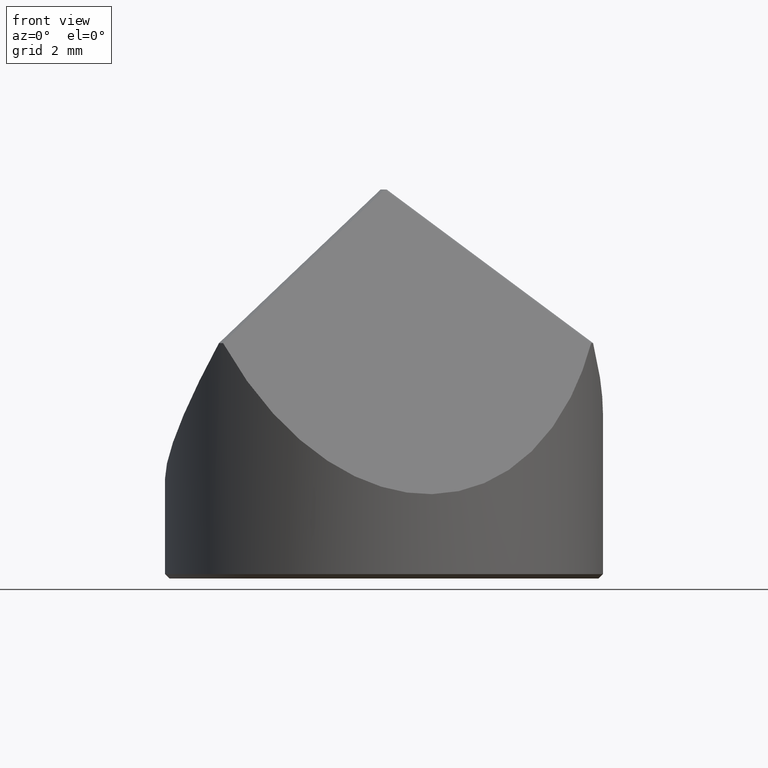
[diagram: clean part render]
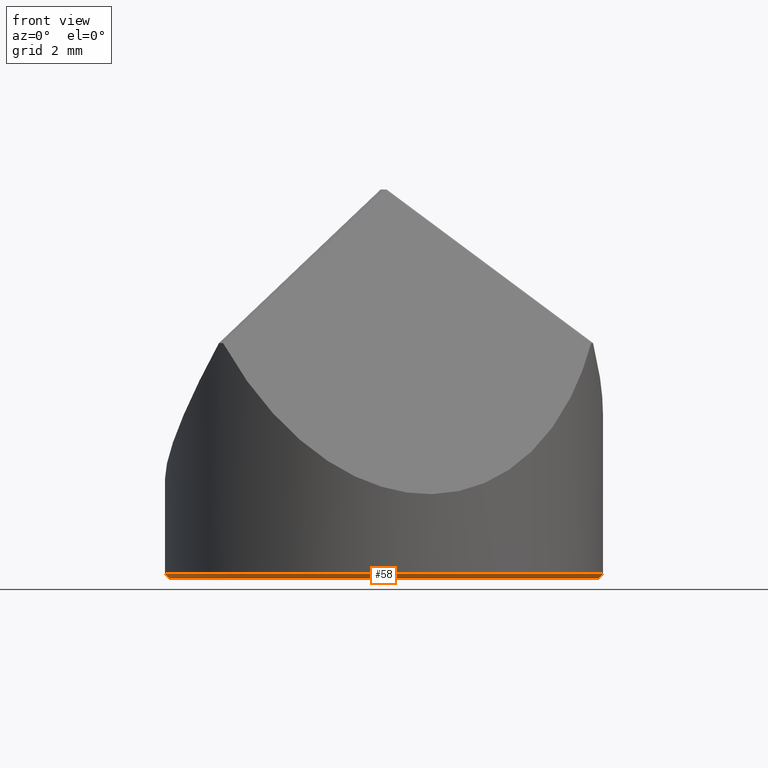
[diagram: same view with one face highlighted and labeled with its STEP entity id]
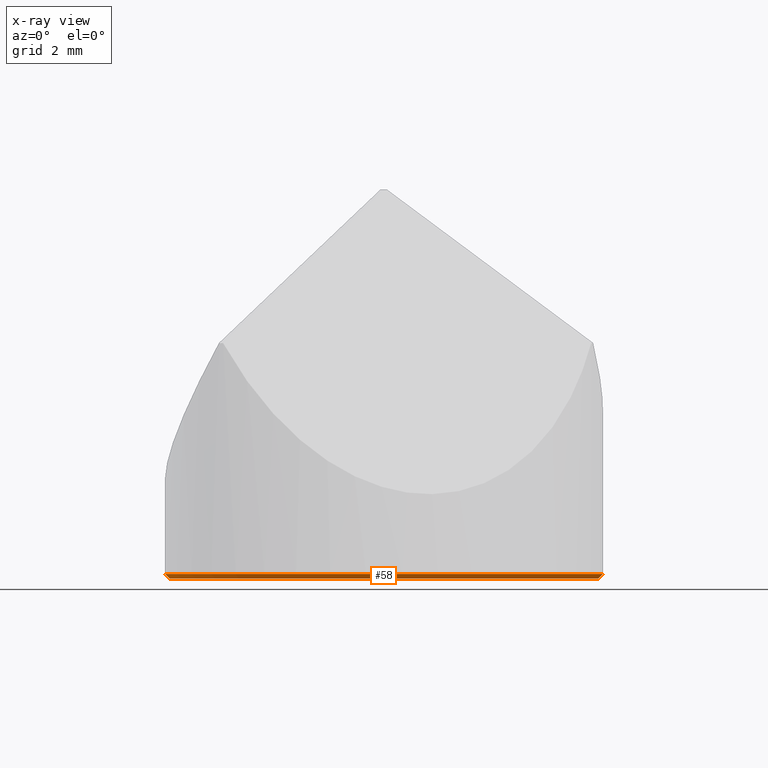
[diagram: x-ray of the same camera — body ghosted, the highlighted face saturated]
A machine part, front view. The second image highlights one B-rep face of the part: STEP entity #58.
The next image is the same camera in x-ray: the body ghosted, the highlighted face saturated — about 0% of this face is hidden behind the body in this view.
In plain terms, the highlighted conical surface has half-angle 45 deg.
Its self-contained STEP definition (entity closure, byte-faithful):
#2 = DIRECTION ( 'NONE',  ( 0.000000000000000000, 0.000000000000000000, -1.000000000000000000 ) ) ;
#29 = AXIS2_PLACEMENT_3D ( 'NONE', #182, #59, #319 ) ;
#34 = LINE ( 'NONE', #117, #122 ) ;
#41 = CARTESIAN_POINT ( 'NONE',  ( -4.899999999999999467, 6.062001655779397525E-16, -0.4600000000000000755 ) ) ;
#50 = VERTEX_POINT ( 'NONE', #152 ) ;
#53 = EDGE_CURVE ( 'NONE', #50, #220, #348, .T. ) ;
#58 = ADVANCED_FACE ( 'NONE', ( #206 ), #155, .T. ) ;
#59 = DIRECTION ( 'NONE',  ( 0.000000000000000000, 0.000000000000000000, 1.000000000000000000 ) ) ;
#71 = ORIENTED_EDGE ( 'NONE', *, *, #301, .F. ) ;
#72 = EDGE_LOOP ( 'NONE', ( #71, #333, #307, #259 ) ) ;
#75 = VERTEX_POINT ( 'NONE', #298 ) ;
#90 = DIRECTION ( 'NONE',  ( 0.000000000000000000, 0.000000000000000000, 1.000000000000000000 ) ) ;
#95 = EDGE_CURVE ( 'NONE', #50, #204, #34, .T. ) ;
#107 = EDGE_CURVE ( 'NONE', #75, #204, #167, .T. ) ;
#109 = DIRECTION ( 'NONE',  ( -0.7071067811865474617, 8.659560562354932858E-17, 0.7071067811865474617 ) ) ;
#117 = CARTESIAN_POINT ( 'NONE',  ( 4.899999999999999467, 0.000000000000000000, -0.4600000000000003531 ) ) ;
#122 = VECTOR ( 'NONE', #269, 1000.000000000000114 ) ;
#139 = LINE ( 'NONE', #260, #194 ) ;
#150 = CARTESIAN_POINT ( 'NONE',  ( 0.000000000000000000, 0.000000000000000000, -0.3600000000000000977 ) ) ;
#152 = CARTESIAN_POINT ( 'NONE',  ( 4.899999999999999467, 0.000000000000000000, -0.4600000000000000755 ) ) ;
#155 = CONICAL_SURFACE ( 'NONE', #29, 4.899999999999999467, 0.7853981633974482790 ) ;
#158 = CARTESIAN_POINT ( 'NONE',  ( 5.000000000000000000, 6.123233995736766282E-16, -0.3600000000000000977 ) ) ;
#167 = CIRCLE ( 'NONE', #209, 5.000000000000000000 ) ;
#182 = CARTESIAN_POINT ( 'NONE',  ( 0.000000000000000000, 0.000000000000000000, -0.4600000000000003531 ) ) ;
#194 = VECTOR ( 'NONE', #109, 1000.000000000000114 ) ;
#204 = VERTEX_POINT ( 'NONE', #158 ) ;
#206 = FACE_OUTER_BOUND ( 'NONE', #72, .T. ) ;
#208 = DIRECTION ( 'NONE',  ( -1.000000000000000000, 0.000000000000000000, 0.000000000000000000 ) ) ;
#209 = AXIS2_PLACEMENT_3D ( 'NONE', #150, #90, #208 ) ;
#220 = VERTEX_POINT ( 'NONE', #41 ) ;
#259 = ORIENTED_EDGE ( 'NONE', *, *, #107, .F. ) ;
#260 = CARTESIAN_POINT ( 'NONE',  ( -4.899999999999999467, 6.000769315822030740E-16, -0.4600000000000003531 ) ) ;
#263 = DIRECTION ( 'NONE',  ( -1.000000000000000000, 0.000000000000000000, 0.000000000000000000 ) ) ;
#269 = DIRECTION ( 'NONE',  ( 0.7071067811865474617, 0.000000000000000000, 0.7071067811865474617 ) ) ;
#293 = CARTESIAN_POINT ( 'NONE',  ( 0.000000000000000000, 0.000000000000000000, -0.4600000000000000755 ) ) ;
#298 = CARTESIAN_POINT ( 'NONE',  ( -5.000000000000000000, 0.000000000000000000, -0.3600000000000000977 ) ) ;
#301 = EDGE_CURVE ( 'NONE', #220, #75, #139, .T. ) ;
#307 = ORIENTED_EDGE ( 'NONE', *, *, #95, .T. ) ;
#319 = DIRECTION ( 'NONE',  ( 1.000000000000000000, 0.000000000000000000, 0.000000000000000000 ) ) ;
#333 = ORIENTED_EDGE ( 'NONE', *, *, #53, .F. ) ;
#348 = CIRCLE ( 'NONE', #359, 4.899999999999999467 ) ;
#359 = AXIS2_PLACEMENT_3D ( 'NONE', #293, #2, #263 ) ;